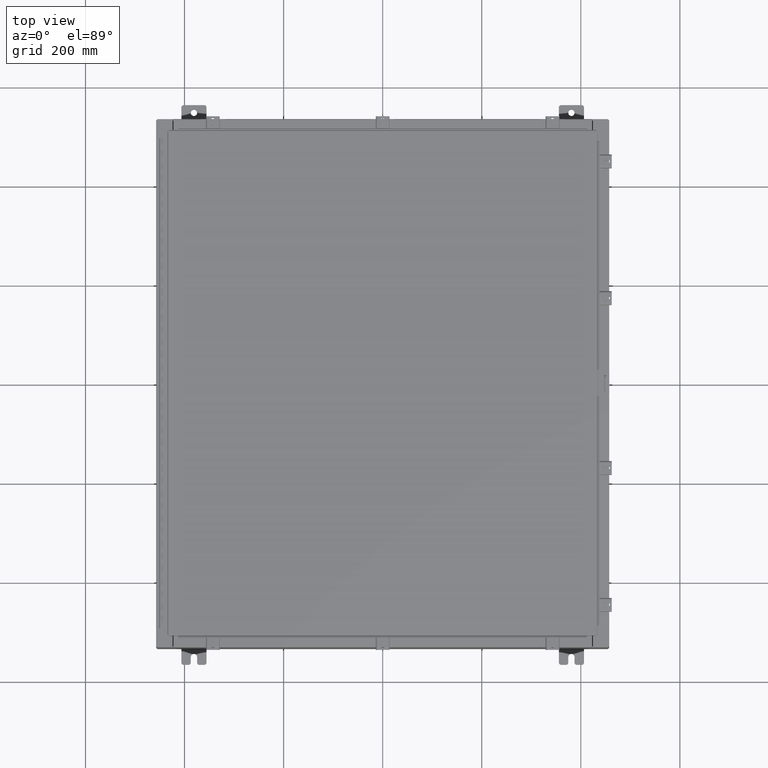
[diagram: clean part render]
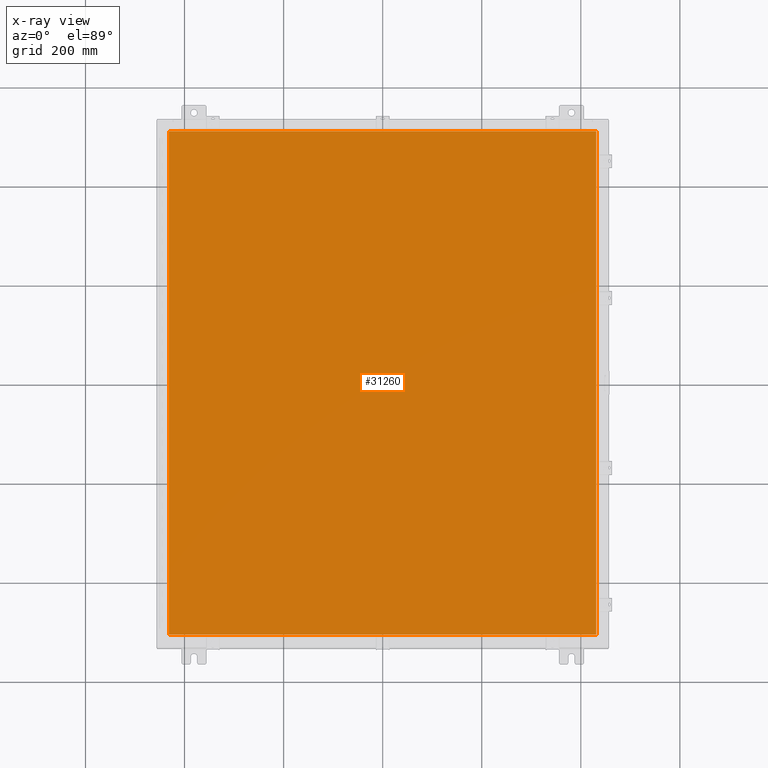
[diagram: x-ray — body ghosted, one internal face saturated and labeled with its STEP entity id]
A machine part, top view, then the same camera in x-ray: the body is ghosted and one INTERNAL B-rep face — a face not visible from any outside direction — is saturated and labeled: STEP entity #31260.
In plain terms, the highlighted planar face has unit normal (0, 0, -1).
Its self-contained STEP definition (entity closure, byte-faithful):
#926 = DIRECTION ( 'NONE',  ( 0.0000000000000000000, 0.0000000000000000000, -1.000000000000000000 ) ) ;
#1221 = EDGE_CURVE ( 'NONE', #43550, #27033, #17375, .T. ) ;
#2345 = CARTESIAN_POINT ( 'NONE',  ( 16.99029999999999800, 20.00630000000000300, -0.07470000000000000300 ) ) ;
#5523 = EDGE_LOOP ( 'NONE', ( #29744, #24308, #34907, #19373 ) ) ;
#7019 = AXIS2_PLACEMENT_3D ( 'NONE', #23803, #926, #27664 ) ;
#7310 = VECTOR ( 'NONE', #49502, 39.37007874015748100 ) ;
#9375 = LINE ( 'NONE', #48684, #48777 ) ;
#11127 = DIRECTION ( 'NONE',  ( -1.000000000000000000, -0.0000000000000000000, -0.0000000000000000000 ) ) ;
#11295 = CARTESIAN_POINT ( 'NONE',  ( 16.99029999999999800, -20.00630000000000300, -0.07470000000000000300 ) ) ;
#14525 = CARTESIAN_POINT ( 'NONE',  ( -16.99029999999999400, 20.00630000000000300, -0.07470000000000019700 ) ) ;
#16028 = LINE ( 'NONE', #43273, #26193 ) ;
#17375 = LINE ( 'NONE', #14525, #7310 ) ;
#18932 = EDGE_CURVE ( 'NONE', #25115, #43550, #40350, .T. ) ;
#19373 = ORIENTED_EDGE ( 'NONE', *, *, #18932, .F. ) ;
#22028 = EDGE_CURVE ( 'NONE', #37783, #25115, #16028, .T. ) ;
#23803 = CARTESIAN_POINT ( 'NONE',  ( 0.0000000000000000000, 0.0000000000000000000, -0.07470000000000000300 ) ) ;
#24308 = ORIENTED_EDGE ( 'NONE', *, *, #47396, .F. ) ;
#25115 = VERTEX_POINT ( 'NONE', #2345 ) ;
#25798 = DIRECTION ( 'NONE',  ( 1.000000000000000000, -0.0000000000000000000, -0.0000000000000000000 ) ) ;
#26193 = VECTOR ( 'NONE', #31740, 39.37007874015748100 ) ;
#27033 = VERTEX_POINT ( 'NONE', #35600 ) ;
#27664 = DIRECTION ( 'NONE',  ( -1.000000000000000000, 0.0000000000000000000, -0.0000000000000000000 ) ) ;
#29744 = ORIENTED_EDGE ( 'NONE', *, *, #22028, .F. ) ;
#30156 = VECTOR ( 'NONE', #11127, 39.37007874015748100 ) ;
#31260 = ADVANCED_FACE ( 'NONE', ( #48289 ), #46715, .T. ) ;
#31740 = DIRECTION ( 'NONE',  ( 0.0000000000000000000, 1.000000000000000000, 0.0000000000000000000 ) ) ;
#34907 = ORIENTED_EDGE ( 'NONE', *, *, #1221, .F. ) ;
#35600 = CARTESIAN_POINT ( 'NONE',  ( -16.99029999999999800, -20.00630000000000300, -0.07470000000000000300 ) ) ;
#37706 = CARTESIAN_POINT ( 'NONE',  ( 16.99029999999999800, 20.00630000000000700, -0.07469999999999804600 ) ) ;
#37783 = VERTEX_POINT ( 'NONE', #11295 ) ;
#40350 = LINE ( 'NONE', #37706, #30156 ) ;
#43273 = CARTESIAN_POINT ( 'NONE',  ( 16.99029999999999800, -20.00630000000000300, -0.07470000000000019700 ) ) ;
#43550 = VERTEX_POINT ( 'NONE', #45139 ) ;
#45139 = CARTESIAN_POINT ( 'NONE',  ( -16.99029999999999400, 20.00630000000000300, -0.07470000000000000300 ) ) ;
#46715 = PLANE ( 'NONE',  #7019 ) ;
#47396 = EDGE_CURVE ( 'NONE', #27033, #37783, #9375, .T. ) ;
#48289 = FACE_OUTER_BOUND ( 'NONE', #5523, .T. ) ;
#48684 = CARTESIAN_POINT ( 'NONE',  ( -16.99029999999999800, -20.00630000000000700, -0.07469999999999804600 ) ) ;
#48777 = VECTOR ( 'NONE', #25798, 39.37007874015748100 ) ;
#49502 = DIRECTION ( 'NONE',  ( 0.0000000000000000000, -1.000000000000000000, 0.0000000000000000000 ) ) ;